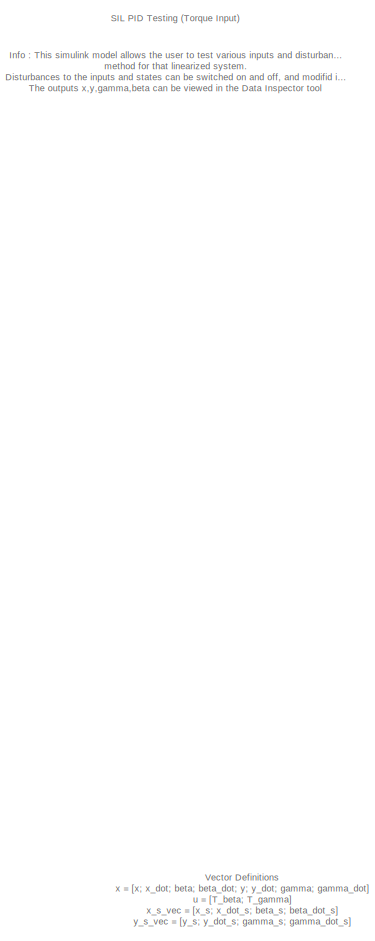
[diagram: root canvas - part 1/2, middle left region]
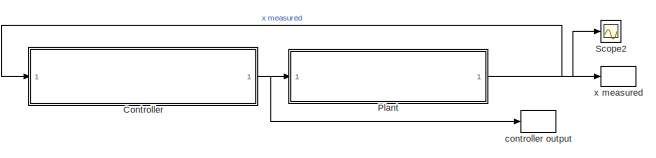
[diagram: root canvas - part 2/2, bottom right region]
MODEL slx_13d56a9d2a38
KIND model
CONFIG AbsTol = auto
CONFIG EnableMultiTasking = off
CONFIG FixedStep = 0.0001
CONFIG MaxStep = auto
CONFIG MinStep = auto
CONFIG RelTol = 1e-9
CONFIG SampleTimeConstraint = Unconstrained
CONFIG SolverName = FixedStepAuto
CONFIG StartTime = tspan(1)
CONFIG StopTime = tspan(2)
BLOCK [ModelReference] Controller
  ModelNameDialog = FSFB_FF_Controller
  ModelReferenceVersion = 1.24
  Ports = [1, 1]
BLOCK [ModelReference] Plant
  ModelNameDialog = Hardware_Plant
  ModelReferenceVersion = 5.35
  Ports = [1, 1]
BLOCK [Scope] Scope2
  Floating = off
  NumInputPorts = 1
  Ports = [1]
  ScopeSpecificationString = Simulink.scopes.TimeScopeBlockCfg('CurrentConfiguration', extmgr.ConfigurationSet(extmgr.Configuration('Core','General UI',true),extmgr.Configuration('Core','Source UI',true),extmgr.Configuration('Sources','WiredSimulink',true,'DataLoggingVariableName','ScopeData1'),extmgr.Configuration('Visuals','Time Domain',true,'SerializedDisplays',{struct('MinYLimReal','-1.13654','MaxYLimReal','1.17943','YLab...<+1499ch>
BLOCK [ToWorkspace] controller output
  FixptAsFi = on
  MaxDataPoints = inf
  Ports = [1]
  SampleTime = -1
  VariableName = u
BLOCK [ToWorkspace] x measured
  FixptAsFi = on
  MaxDataPoints = inf
  Ports = [1]
  SampleTime = -1
  VariableName = x
ANNOTATION (root): Vector Definitions x = [x; x_dot; beta; beta_dot; y; y_dot; gamma; gamma_dot] u = [T_beta; T_gamma] x_s_vec = [x_s; x_dot_s; beta_s; beta_dot_s ] y_s_vec = [y_s; y_dot_s; gamma_s; gamma_dot_s ]
ANNOTATION (root): SIL PID Testing (Torque Input)
ANNOTATION (root): Info : This simulink model allows the user to test various inputs and disturbances to the open loop and closed loop ball and plate system. The controller gain matrix, K, was found from pole placement method for that linearized system. Disturbances to the inputs and states can be switched on and off, and modifid inside the subsystems. The outputs x,y,gamma,beta can be viewed in the Data Inspector t...<+3ch>
NET Controller:1 -> Plant:1, controller output:1
NET Plant:1 -> Controller:1, Scope2:1, x measured:1
note: NET lines group one-source signal fan-out (src -> all destinations, sorted); 1:1 wires keep LINE
